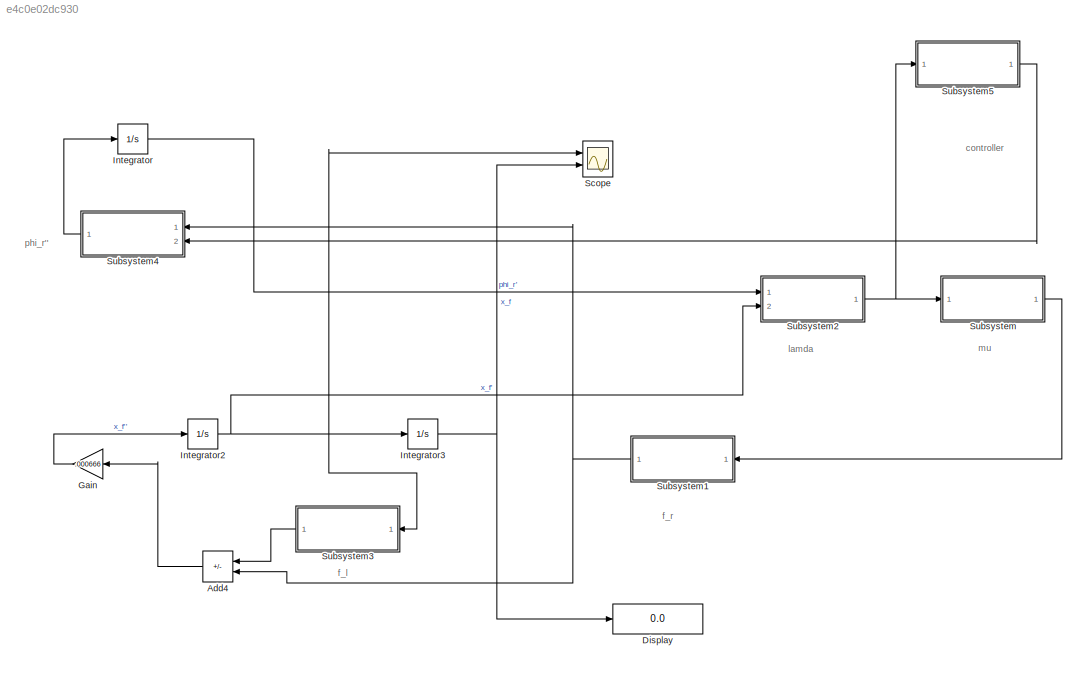
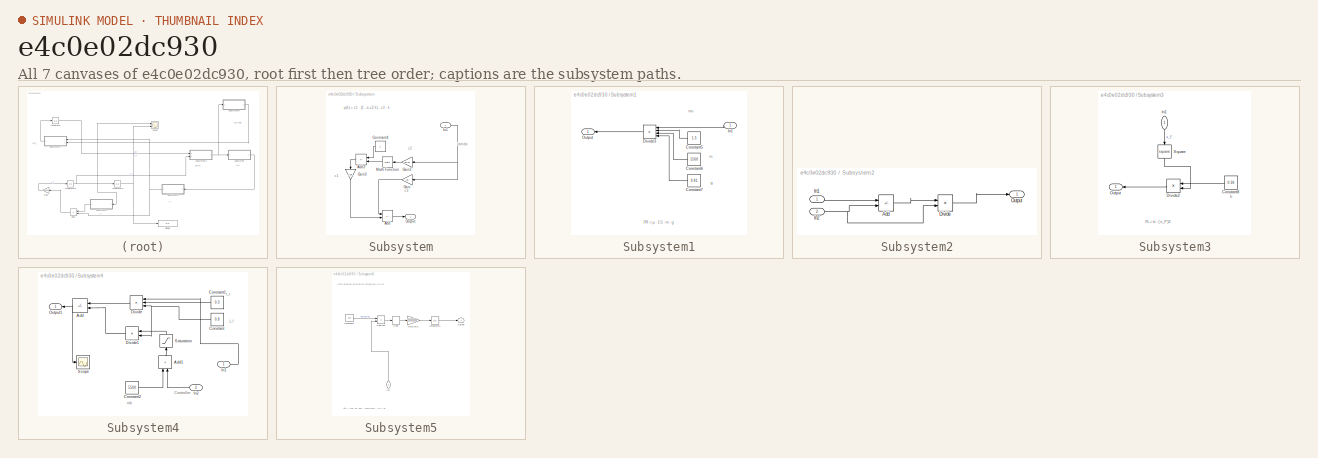
[diagram: thumbnail index - all 7 canvases of the model, root first then tree order]
MODEL slx_e4c0e02dc930
KIND model
CONFIG AbsTol = auto
CONFIG EnableMultiTasking = off
CONFIG FixedStep = auto
CONFIG MaxStep = auto
CONFIG MinStep = auto
CONFIG RelTol = 1e-3
CONFIG SampleTimeConstraint = Unconstrained
CONFIG Solver = ode15s
CONFIG SolverName = ode15s
CONFIG StartTime = 0.0
CONFIG StopTime = 10.0
BLOCK [Sum] Add4
  IconShape = rectangular
  Inputs = --
  NameLocation = top
  Ports = [2, 1]
BLOCK [Display] Display
  Decimation = 1
  Ports = [1]
BLOCK [Gain] Gain
  Gain = .000666
  NameLocation = top
BLOCK [Integrator] Integrator
  LimitOutput = on
  LowerSaturationLimit = 0
  Ports = [1, 1]
BLOCK [Integrator] Integrator2
  InitialCondition = 30
  LimitOutput = on
  LowerSaturationLimit = 0
  Ports = [1, 1]
BLOCK [Integrator] Integrator3
  Ports = [1, 1]
BLOCK [Scope] Scope
  Floating = off
  NumInputPorts = 2
  Ports = [2]
  ScopeSpecificationString = Simulink.scopes.TimeScopeBlockCfg('CurrentConfiguration', extmgr.ConfigurationSet(extmgr.Configuration('Core','General UI',true),extmgr.Configuration('Core','Source UI',true),extmgr.Configuration('Sources','WiredSimulink',true,'DataLoggingVariableName','ScopeData1'),extmgr.Configuration('Visuals','Time Domain',true,'SerializedDisplays',{struct('MinYLimReal','-5.00264','MaxYLimReal','45.02372','YLa...<+1540ch>
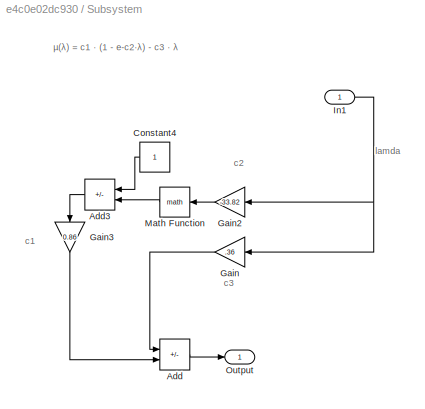
BLOCK [SubSystem] Subsystem
  Ports = [1, 1]
  RequestExecContextInheritance = off
BLOCK [Sum] Subsystem/Add
  IconShape = rectangular
  Inputs = -+
  Ports = [2, 1]
BLOCK [Sum] Subsystem/Add3
  IconShape = rectangular
  Inputs = +-
  NameLocation = top
  Ports = [2, 1]
BLOCK [Constant] Subsystem/Constant4
  NameLocation = top
BLOCK [Gain] Subsystem/Gain
  Gain = .36
  NameLocation = top
BLOCK [Gain] Subsystem/Gain2
  Gain = -33.82
  NameLocation = top
BLOCK [Gain] Subsystem/Gain3
  Gain = 0.86
  NameLocation = left
BLOCK [Inport] Subsystem/In1
BLOCK [Math] Subsystem/Math Function
  NameLocation = top
  Ports = [1, 1]
BLOCK [Outport] Subsystem/Output
BLOCK [SubSystem] Subsystem1
  NameLocation = top
  Ports = [1, 1]
  RequestExecContextInheritance = off
BLOCK [Constant] Subsystem1/Constant5
  NameLocation = top
  Value = 1.5
BLOCK [Constant] Subsystem1/Constant6
  NameLocation = top
  Value = 1500
BLOCK [Constant] Subsystem1/Constant7
  NameLocation = top
  Value = 9.81
BLOCK [Product] Subsystem1/Divide3
  Inputs = ****
  NameLocation = top
  Ports = [4, 1]
BLOCK [Inport] Subsystem1/In1
  NameLocation = top
BLOCK [Outport] Subsystem1/Output
  NameLocation = top
BLOCK [SubSystem] Subsystem2
  Ports = [2, 1]
  RequestExecContextInheritance = off
BLOCK [Sum] Subsystem2/Add
  IconShape = rectangular
  Inputs = -+
  Ports = [2, 1]
BLOCK [Product] Subsystem2/Divide
  Inputs = */
  Ports = [2, 1]
BLOCK [Inport] Subsystem2/In1
BLOCK [Inport] Subsystem2/In2
  Port = 2
BLOCK [Outport] Subsystem2/Output
BLOCK [SubSystem] Subsystem3
  NameLocation = top
  Ports = [1, 1]
  RequestExecContextInheritance = off
BLOCK [Constant] Subsystem3/Constant8
  NameLocation = top
  Value = 0.36
BLOCK [Product] Subsystem3/Divide2
  Inputs = **
  NameLocation = top
  Ports = [2, 1]
BLOCK [Inport] Subsystem3/In1
  NameLocation = left
BLOCK [Outport] Subsystem3/Output
  NameLocation = top
BLOCK [Math] Subsystem3/Square
  NameLocation = left
  Operator = square
  Ports = [1, 1]
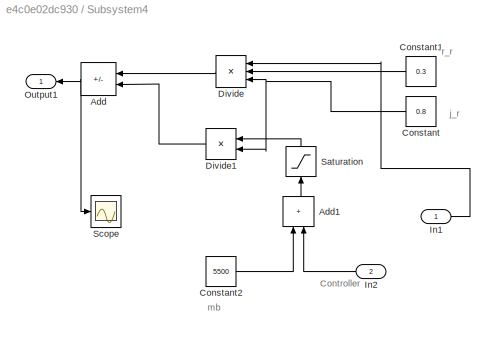
BLOCK [SubSystem] Subsystem4
  NameLocation = top
  Ports = [2, 1]
  RequestExecContextInheritance = off
BLOCK [Sum] Subsystem4/Add
  IconShape = rectangular
  Inputs = +-
  NameLocation = top
  Ports = [2, 1]
BLOCK [Sum] Subsystem4/Add1
  IconShape = rectangular
  NameLocation = right
  Ports = [2, 1]
BLOCK [Constant] Subsystem4/Constant
  NameLocation = top
  Value = 0.8
BLOCK [Constant] Subsystem4/Constant1
  NameLocation = top
  Value = 0.3
BLOCK [Constant] Subsystem4/Constant2
  Value = 5500
BLOCK [Product] Subsystem4/Divide
  Inputs = **/
  NameLocation = top
  Ports = [3, 1]
BLOCK [Product] Subsystem4/Divide1
  Inputs = */
  NameLocation = top
  Ports = [2, 1]
BLOCK [Inport] Subsystem4/In1
BLOCK [Inport] Subsystem4/In2
  NameLocation = top
  Port = 2
BLOCK [Outport] Subsystem4/Output1
  NameLocation = top
BLOCK [Saturate] Subsystem4/Saturation
  LowerLimit = -inf
  NameLocation = right
  UpperLimit = inf
BLOCK [Scope] Subsystem4/Scope
  Floating = off
  NumInputPorts = 1
  Ports = [1]
  ScopeSpecificationString = Simulink.scopes.TimeScopeBlockCfg('CurrentConfiguration', extmgr.ConfigurationSet(extmgr.Configuration('Core','General UI',true),extmgr.Configuration('Core','Source UI',true),extmgr.Configuration('Sources','WiredSimulink',true,'DataLoggingVariableName','ScopeData3'),extmgr.Configuration('Visuals','Time Domain',true,'SerializedDisplays',{struct('MinYLimReal','-4289.61896','MaxYLimReal','2303.14568'...<+1384ch>
BLOCK [SubSystem] Subsystem5
  Ports = [1, 1]
  RequestExecContextInheritance = off
BLOCK [Constant] Subsystem5/Constant1
  Value = 0.13
BLOCK [Inport] Subsystem5/In1
  NameLocation = right
BLOCK [Integrator] Subsystem5/Integrator1
  LimitOutput = on
  LowerSaturationLimit = -20000
  Ports = [1, 1]
  UpperSaturationLimit = 20000
BLOCK [Gain] Subsystem5/Multiply1
  Gain = 20000
BLOCK [Outport] Subsystem5/Output
BLOCK [Signum] Subsystem5/Sign
BLOCK [Sum] Subsystem5/Subtract
  IconShape = rectangular
  Inputs = +-
  Ports = [2, 1]
ANNOTATION (root): mu
ANNOTATION (root): controller
ANNOTATION (root): f_l
ANNOTATION (root): f_r
ANNOTATION (root): lamda
ANNOTATION (root): phi_r''
ANNOTATION Subsystem: µ(λ) = c1 · (1 - e-c2·λ) - c3 · λ
ANNOTATION Subsystem: c1
ANNOTATION Subsystem: c2
ANNOTATION Subsystem: c3
ANNOTATION Subsystem: lamda
ANNOTATION Subsystem1: FR = µ · 1:5 · m · g
ANNOTATION Subsystem1: g
ANNOTATION Subsystem1: m
ANNOTATION Subsystem1: mu
ANNOTATION Subsystem3: FL = b · ( x_F')2
ANNOTATION Subsystem3: b
ANNOTATION Subsystem4: Controller
ANNOTATION Subsystem4: j_r
ANNOTATION Subsystem4: mb
ANNOTATION Subsystem4: r_r
ANNOTATION Subsystem5: ∆(t) = Z0t 20; 000 · sign(λmax - λ(τ)) dτ
ANNOTATION Subsystem5: From previous calculation lamda_max is 0.13
LINE Add4:1 -> Gain:1
LINE Gain:1 -> Integrator2:1
NET Integrator2:1 -> Integrator3:1, Scope:1, Subsystem2:2, Subsystem3:1
NET Integrator3:1 -> Display:1, Scope:2
LINE Integrator:1 -> Subsystem2:1
LINE Subsystem/Add3:1 -> Subsystem/Gain3:1
LINE Subsystem/Add:1 -> Subsystem/Output:1
LINE Subsystem/Constant4:1 -> Subsystem/Add3:1
LINE Subsystem/Gain2:1 -> Subsystem/Math Function:1
LINE Subsystem/Gain3:1 -> Subsystem/Add:2
LINE Subsystem/Gain:1 -> Subsystem/Add:1
NET Subsystem/In1:1 -> Subsystem/Gain2:1, Subsystem/Gain:1
LINE Subsystem/Math Function:1 -> Subsystem/Add3:2
LINE Subsystem1/Constant5:1 -> Subsystem1/Divide3:2
LINE Subsystem1/Constant6:1 -> Subsystem1/Divide3:3
LINE Subsystem1/Constant7:1 -> Subsystem1/Divide3:4
LINE Subsystem1/Divide3:1 -> Subsystem1/Output:1
LINE Subsystem1/In1:1 -> Subsystem1/Divide3:1
NET Subsystem1:1 -> Add4:2, Subsystem4:1
LINE Subsystem2/Add:1 -> Subsystem2/Divide:1
LINE Subsystem2/Divide:1 -> Subsystem2/Output:1
LINE Subsystem2/In1:1 -> Subsystem2/Add:1
NET Subsystem2/In2:1 -> Subsystem2/Add:2, Subsystem2/Divide:2
NET Subsystem2:1 -> Subsystem5:1, Subsystem:1
LINE Subsystem3/Constant8:1 -> Subsystem3/Divide2:1
LINE Subsystem3/Divide2:1 -> Subsystem3/Output:1
LINE Subsystem3/In1:1 -> Subsystem3/Square:1
LINE Subsystem3/Square:1 -> Subsystem3/Divide2:2
LINE Subsystem3:1 -> Add4:1
LINE Subsystem4/Add1:1 -> Subsystem4/Saturation:1
NET Subsystem4/Add:1 -> Subsystem4/Output1:1, Subsystem4/Scope:1
LINE Subsystem4/Constant1:1 -> Subsystem4/Divide:2
LINE Subsystem4/Constant2:1 -> Subsystem4/Add1:1
NET Subsystem4/Constant:1 -> Subsystem4/Divide1:2, Subsystem4/Divide:3
LINE Subsystem4/Divide1:1 -> Subsystem4/Add:2
LINE Subsystem4/Divide:1 -> Subsystem4/Add:1
LINE Subsystem4/In1:1 -> Subsystem4/Divide:1
LINE Subsystem4/In2:1 -> Subsystem4/Add1:2
LINE Subsystem4/Saturation:1 -> Subsystem4/Divide1:1
LINE Subsystem4:1 -> Integrator:1
LINE Subsystem5/Constant1:1 -> Subsystem5/Subtract:1
LINE Subsystem5/In1:1 -> Subsystem5/Subtract:2
LINE Subsystem5/Integrator1:1 -> Subsystem5/Output:1
LINE Subsystem5/Multiply1:1 -> Subsystem5/Integrator1:1
LINE Subsystem5/Sign:1 -> Subsystem5/Multiply1:1
LINE Subsystem5/Subtract:1 -> Subsystem5/Sign:1
LINE Subsystem5:1 -> Subsystem4:2
LINE Subsystem:1 -> Subsystem1:1
note: NET lines group one-source signal fan-out (src -> all destinations, sorted); 1:1 wires keep LINE
